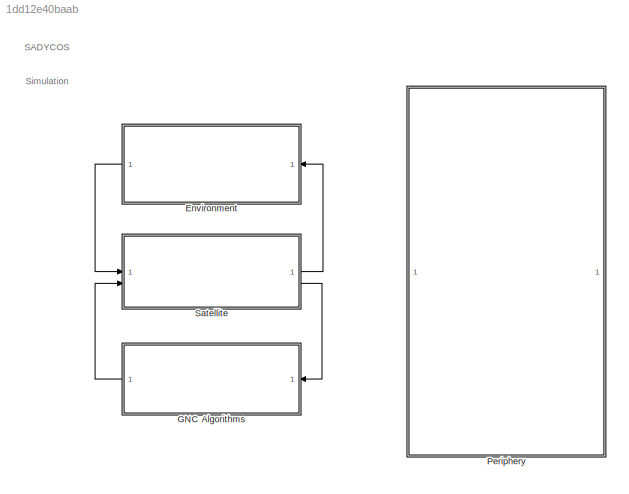
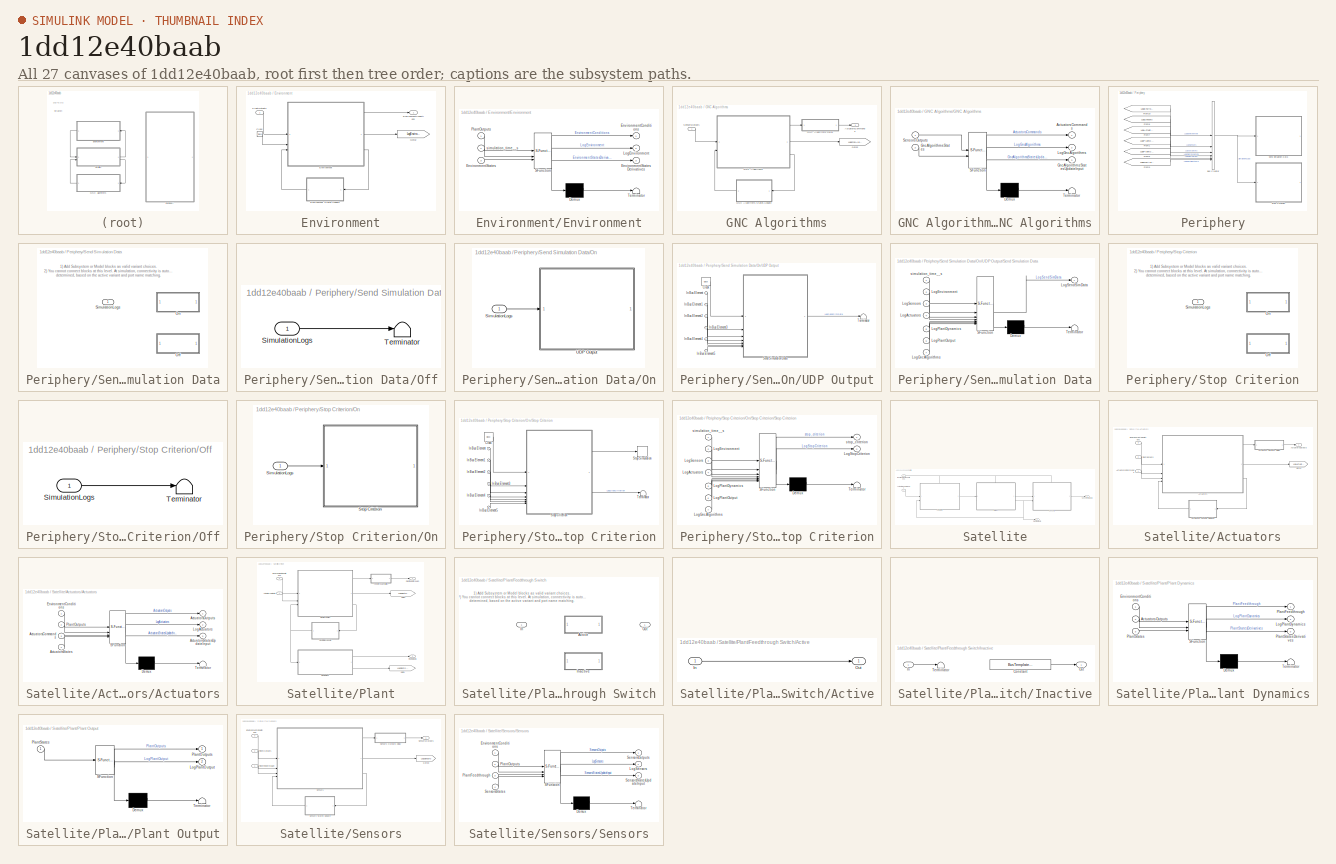
[diagram: thumbnail index - all 27 canvases of the model, root first then tree order]
MODEL slx_1dd12e40baab
KIND model
CONFIG AbsTol = auto
CONFIG EnableMultiTasking = off
CONFIG FixedStep = auto
CONFIG MaxStep = auto
CONFIG MinStep = auto
CONFIG RelTol = 1e-3
CONFIG SampleTimeConstraint = Unconstrained
CONFIG SolverName = VariableStepAuto
CONFIG StartTime = 0.0
CONFIG StopTime = 60
BLOCK [SubSystem] Environment
BLOCK [Clock] Environment/Clock
BLOCK [SubSystem] Environment/Environment
  ErrorFcn = Stateflow.Translate.translate
  LibrarySourceBlock = simulink/User-Defined\nFunctions/MATLAB Function
  PermitHierarchicalResolution = ExplicitOnly
  SFBlockType = MATLAB Function
  SystemSampleTime = [0 0]
  TreatAsAtomicUnit = on
BLOCK [SubSystem] Environment/Environment States Update
  BusInitialValue = Parameters.General.States.InitialStates.Environment
  BusTemplate = BusTemplates.EnvironmentStates
  ReferencedSubsystem = states_update
  bus = EnvironmentStates
  states_type = Parameters.General.States.Type.Environment
BLOCK [Demux] Environment/Environment/ Demux 
  Outputs = 1
BLOCK [S-Function] Environment/Environment/ SFunction 
  EnableBusSupport = on
  FunctionName = sf_sfun
  Parameters = BusTemplates,Parameters
  PortCounts = [3 4]
  SFcnIsStateOwnerBlock = off
  SFunctionDeploymentMode = off
  Tag = Stateflow S-Function 3
BLOCK [Terminator] Environment/Environment/ Terminator 
BLOCK [Outport] Environment/Environment/EnvironmentConditions
BLOCK [Inport] Environment/Environment/EnvironmentStates
  Port = 3
BLOCK [Outport] Environment/Environment/EnvironmentStatesDerivatives
  Port = 3
BLOCK [Outport] Environment/Environment/LogEnvironment
  Port = 2
BLOCK [Inport] Environment/Environment/PlantOutputs
BLOCK [Inport] Environment/Environment/simulation_time__s
  Port = 2
BLOCK [Outport] Environment/EnvironmentConditions
BLOCK [Goto] Environment/Goto2
  GotoTag = LogEnvironment
  TagVisibility = global
BLOCK [Inport] Environment/PlantOutputs
BLOCK [SubSystem] GNC Algorithms
BLOCK [Outport] GNC Algorithms/ActuatorsCommands
BLOCK [SubSystem] GNC Algorithms/GNC Algorithms
  ErrorFcn = Stateflow.Translate.translate
  LibrarySourceBlock = simulink/User-Defined\nFunctions/MATLAB Function
  PermitHierarchicalResolution = ExplicitOnly
  SFBlockType = MATLAB Function
  SystemSampleTime = Parameters.General.SampleTimeParameters__s.GncAlgorithms
  TreatAsAtomicUnit = on
BLOCK [SubSystem] GNC Algorithms/GNC Algorithms Delay
  BusInitialValue = Parameters.General.Delays.InitialOutputs.GncAlgorithms
  BusTemplate = BusTemplates.ActuatorsCommands
  ReferencedSubsystem = delay
  bus = ActuatorsCommands
  delay_type = Parameters.General.Delays.Type.GncAlgorithms
  delay_value = Parameters.General.Delays.Value.GncAlgorithms
BLOCK [SubSystem] GNC Algorithms/GNC Algorithms States Update
  BusInitialValue = Parameters.General.States.InitialStates.GncAlgorithms
  BusTemplate = BusTemplates.GncAlgorithmsStates
  ReferencedSubsystem = states_update
  bus = GncAlgorithmsStates
  states_type = Parameters.General.States.Type.GncAlgorithms
BLOCK [Demux] GNC Algorithms/GNC Algorithms/ Demux 
  Outputs = 1
BLOCK [S-Function] GNC Algorithms/GNC Algorithms/ SFunction 
  EnableBusSupport = on
  FunctionName = sf_sfun
  Parameters = BusTemplates,Parameters
  PortCounts = [2 4]
  SFcnIsStateOwnerBlock = off
  SFunctionDeploymentMode = off
  Tag = Stateflow S-Function 4
BLOCK [Terminator] GNC Algorithms/GNC Algorithms/ Terminator 
BLOCK [Outport] GNC Algorithms/GNC Algorithms/ActuatorsCommands
BLOCK [Inport] GNC Algorithms/GNC Algorithms/GncAlgorithmsStates
  Port = 2
BLOCK [Outport] GNC Algorithms/GNC Algorithms/GncAlgorithmsStatesUpdateInput
  Port = 3
BLOCK [Outport] GNC Algorithms/GNC Algorithms/LogGncAlgorithms
  Port = 2
BLOCK [Inport] GNC Algorithms/GNC Algorithms/SensorsOutputs
BLOCK [Goto] GNC Algorithms/Goto2
  GotoTag = LogGncAlgorithms
  TagVisibility = global
BLOCK [Inport] GNC Algorithms/SensorsOutputs
BLOCK [SubSystem] Periphery
BLOCK [BusCreator] Periphery/Bus Creator
  DisplayOption = bar
  InheritFromInputs = on
  Inputs = 6
BLOCK [From] Periphery/From1
  GotoTag = LogPlantDynamics
  TagVisibility = global
BLOCK [From] Periphery/From10
  GotoTag = LogEnvironment
  TagVisibility = global
BLOCK [From] Periphery/From6
  GotoTag = LogPlantOutput
  TagVisibility = global
BLOCK [From] Periphery/From7
  GotoTag = LogActuators
  TagVisibility = global
BLOCK [From] Periphery/From8
  GotoTag = LogSensors
  TagVisibility = global
BLOCK [From] Periphery/From9
  GotoTag = LogGncAlgorithms
  TagVisibility = global
BLOCK [SubSystem] Periphery/Send Simulation Data
  Variant = on
BLOCK [SubSystem] Periphery/Send Simulation Data/Off
  VariantControl = ~Parameters.General.enable_send_sim_data
BLOCK [Inport] Periphery/Send Simulation Data/Off/SimulationLogs
BLOCK [Terminator] Periphery/Send Simulation Data/Off/Terminator
BLOCK [SubSystem] Periphery/Send Simulation Data/On
  VariantControl = Parameters.General.enable_send_sim_data
BLOCK [Inport] Periphery/Send Simulation Data/On/SimulationLogs
BLOCK [SubSystem] Periphery/Send Simulation Data/On/UDP Output
BLOCK [Clock] Periphery/Send Simulation Data/On/UDP Output/Clock
BLOCK [Inport] Periphery/Send Simulation Data/On/UDP Output/In Bus Element
BLOCK [Inport] Periphery/Send Simulation Data/On/UDP Output/In Bus Element1
BLOCK [Inport] Periphery/Send Simulation Data/On/UDP Output/In Bus Element2
BLOCK [Inport] Periphery/Send Simulation Data/On/UDP Output/In Bus Element3
BLOCK [Inport] Periphery/Send Simulation Data/On/UDP Output/In Bus Element4
BLOCK [Inport] Periphery/Send Simulation Data/On/UDP Output/In Bus Element5
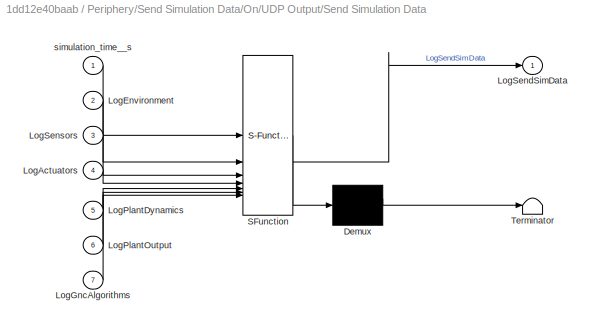
BLOCK [SubSystem] Periphery/Send Simulation Data/On/UDP Output/Send Simulation Data
  ErrorFcn = Stateflow.Translate.translate
  LibrarySourceBlock = simulink/User-Defined\nFunctions/MATLAB Function
  PermitHierarchicalResolution = ExplicitOnly
  SFBlockType = MATLAB Function
  SystemSampleTime = Parameters.General.SampleTimeParameters__s.SendSimData
  TreatAsAtomicUnit = on
BLOCK [Demux] Periphery/Send Simulation Data/On/UDP Output/Send Simulation Data/ Demux 
  Outputs = 1
BLOCK [S-Function] Periphery/Send Simulation Data/On/UDP Output/Send Simulation Data/ SFunction 
  EnableBusSupport = on
  FunctionName = sf_sfun
  Parameters = BusTemplates,Parameters
  PortCounts = [7 2]
  SFcnIsStateOwnerBlock = off
  SFunctionDeploymentMode = off
  Tag = Stateflow S-Function 1
BLOCK [Terminator] Periphery/Send Simulation Data/On/UDP Output/Send Simulation Data/ Terminator 
BLOCK [Inport] Periphery/Send Simulation Data/On/UDP Output/Send Simulation Data/LogActuators
  Port = 4
BLOCK [Inport] Periphery/Send Simulation Data/On/UDP Output/Send Simulation Data/LogEnvironment
  Port = 2
BLOCK [Inport] Periphery/Send Simulation Data/On/UDP Output/Send Simulation Data/LogGncAlgorithms
  Port = 7
BLOCK [Inport] Periphery/Send Simulation Data/On/UDP Output/Send Simulation Data/LogPlantDynamics
  Port = 5
BLOCK [Inport] Periphery/Send Simulation Data/On/UDP Output/Send Simulation Data/LogPlantOutput
  Port = 6
BLOCK [Outport] Periphery/Send Simulation Data/On/UDP Output/Send Simulation Data/LogSendSimData
BLOCK [Inport] Periphery/Send Simulation Data/On/UDP Output/Send Simulation Data/LogSensors
  Port = 3
BLOCK [Inport] Periphery/Send Simulation Data/On/UDP Output/Send Simulation Data/simulation_time__s
BLOCK [Terminator] Periphery/Send Simulation Data/On/UDP Output/Terminator
BLOCK [Inport] Periphery/Send Simulation Data/SimulationLogs
BLOCK [SubSystem] Periphery/Stop Criterion
  Variant = on
BLOCK [SubSystem] Periphery/Stop Criterion/Off
  VariantControl = ~Parameters.General.enable_stop_criterion
BLOCK [Inport] Periphery/Stop Criterion/Off/SimulationLogs
BLOCK [Terminator] Periphery/Stop Criterion/Off/Terminator
BLOCK [SubSystem] Periphery/Stop Criterion/On
  VariantControl = Parameters.General.enable_stop_criterion
BLOCK [Inport] Periphery/Stop Criterion/On/SimulationLogs
BLOCK [SubSystem] Periphery/Stop Criterion/On/Stop Criterion
BLOCK [Clock] Periphery/Stop Criterion/On/Stop Criterion/Clock
BLOCK [Inport] Periphery/Stop Criterion/On/Stop Criterion/In Bus Element
BLOCK [Inport] Periphery/Stop Criterion/On/Stop Criterion/In Bus Element1
BLOCK [Inport] Periphery/Stop Criterion/On/Stop Criterion/In Bus Element2
BLOCK [Inport] Periphery/Stop Criterion/On/Stop Criterion/In Bus Element3
BLOCK [Inport] Periphery/Stop Criterion/On/Stop Criterion/In Bus Element4
BLOCK [Inport] Periphery/Stop Criterion/On/Stop Criterion/In Bus Element5
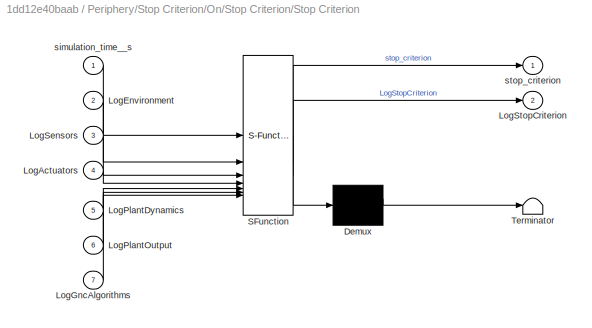
BLOCK [SubSystem] Periphery/Stop Criterion/On/Stop Criterion/Stop Criterion
  ErrorFcn = Stateflow.Translate.translate
  LibrarySourceBlock = simulink/User-Defined\nFunctions/MATLAB Function
  PermitHierarchicalResolution = ExplicitOnly
  SFBlockType = MATLAB Function
  SystemSampleTime = 0
  TreatAsAtomicUnit = on
BLOCK [Demux] Periphery/Stop Criterion/On/Stop Criterion/Stop Criterion/ Demux 
  Outputs = 1
BLOCK [S-Function] Periphery/Stop Criterion/On/Stop Criterion/Stop Criterion/ SFunction 
  EnableBusSupport = off
  FunctionName = sf_sfun
  Parameters = BusTemplates,Parameters
  PortCounts = [7 3]
  SFcnIsStateOwnerBlock = off
  SFunctionDeploymentMode = off
  Tag = Stateflow S-Function 7
BLOCK [Terminator] Periphery/Stop Criterion/On/Stop Criterion/Stop Criterion/ Terminator 
BLOCK [Inport] Periphery/Stop Criterion/On/Stop Criterion/Stop Criterion/LogActuators
  Port = 4
BLOCK [Inport] Periphery/Stop Criterion/On/Stop Criterion/Stop Criterion/LogEnvironment
  Port = 2
BLOCK [Inport] Periphery/Stop Criterion/On/Stop Criterion/Stop Criterion/LogGncAlgorithms
  Port = 7
BLOCK [Inport] Periphery/Stop Criterion/On/Stop Criterion/Stop Criterion/LogPlantDynamics
  Port = 5
BLOCK [Inport] Periphery/Stop Criterion/On/Stop Criterion/Stop Criterion/LogPlantOutput
  Port = 6
BLOCK [Inport] Periphery/Stop Criterion/On/Stop Criterion/Stop Criterion/LogSensors
  Port = 3
BLOCK [Outport] Periphery/Stop Criterion/On/Stop Criterion/Stop Criterion/LogStopCriterion
  Port = 2
BLOCK [Inport] Periphery/Stop Criterion/On/Stop Criterion/Stop Criterion/simulation_time__s
BLOCK [Outport] Periphery/Stop Criterion/On/Stop Criterion/Stop Criterion/stop_criterion
BLOCK [Stop] Periphery/Stop Criterion/On/Stop Criterion/Stop Simulation
BLOCK [Terminator] Periphery/Stop Criterion/On/Stop Criterion/Terminator
BLOCK [Inport] Periphery/Stop Criterion/SimulationLogs
BLOCK [SubSystem] Satellite
BLOCK [SubSystem] Satellite/Actuators
  PortSchema = {"entries":[{"content":{"sides":[{"content":{"connectorIds":["In1","In2"]},"type":"ConnectorPlacement.EquallySpacedRectSide","uuid":"84ab0471-c988-440c-b8b5-169cbd29501d"},{"content":{"connectorIds":["Out1"],"side":"RIGHT"},"type":"ConnectorPlacement.EquallySpacedRectSide","uuid":"27e08eb0-e385-4cd2-ab07-f71ebf995a80"},{"content":{"connectorIds":["In3"],"side":"TOP"},"type":"ConnectorPlacement.Equ...<+251ch>
BLOCK [SubSystem] Satellite/Actuators/Actuators
  ErrorFcn = Stateflow.Translate.translate
  LibrarySourceBlock = simulink/User-Defined\nFunctions/MATLAB Function
  PermitHierarchicalResolution = ExplicitOnly
  SFBlockType = MATLAB Function
  SystemSampleTime = Parameters.General.SampleTimeParameters__s.Sensors
  TreatAsAtomicUnit = on
BLOCK [SubSystem] Satellite/Actuators/Actuators Outputs Delay
  BusInitialValue = Parameters.General.Delays.InitialOutputs.Actuators
  BusTemplate = BusTemplates.ActuatorsOutputs
  ReferencedSubsystem = delay
  bus = ActuatorsOutputs
  delay_type = Parameters.General.Delays.Type.Actuators
  delay_value = Parameters.General.Delays.Value.Actuators
BLOCK [SubSystem] Satellite/Actuators/Actuators States Update
  BusInitialValue = Parameters.General.States.InitialStates.Actuators
  BusTemplate = BusTemplates.ActuatorsStates
  ReferencedSubsystem = states_update
  bus = ActuatorsStates
  states_type = Parameters.General.States.Type.Actuators
BLOCK [Demux] Satellite/Actuators/Actuators/ Demux 
  Outputs = 1
BLOCK [S-Function] Satellite/Actuators/Actuators/ SFunction 
  EnableBusSupport = on
  FunctionName = sf_sfun
  Parameters = BusTemplates,Parameters
  PortCounts = [4 4]
  SFcnIsStateOwnerBlock = off
  SFunctionDeploymentMode = off
  Tag = Stateflow S-Function 5
BLOCK [Terminator] Satellite/Actuators/Actuators/ Terminator 
BLOCK [Inport] Satellite/Actuators/Actuators/ActuatorsCommands
  Port = 3
BLOCK [Outport] Satellite/Actuators/Actuators/ActuatorsOutputs
BLOCK [Inport] Satellite/Actuators/Actuators/ActuatorsStates
  Port = 4
BLOCK [Outport] Satellite/Actuators/Actuators/ActuatorsStatesUpdateInput
  Port = 3
BLOCK [Inport] Satellite/Actuators/Actuators/EnvironmentConditions
BLOCK [Outport] Satellite/Actuators/Actuators/LogActuators
  Port = 2
BLOCK [Inport] Satellite/Actuators/Actuators/PlantOutputs
  Port = 2
BLOCK [Inport] Satellite/Actuators/ActuatorsCommands
BLOCK [Outport] Satellite/Actuators/ActuatorsOutputs
BLOCK [Inport] Satellite/Actuators/EnvironmentConditions
  Port = 3
BLOCK [Goto] Satellite/Actuators/Goto4
  GotoTag = LogActuators
  TagVisibility = global
BLOCK [Inport] Satellite/Actuators/PlantOutputs
  Port = 2
BLOCK [Inport] Satellite/ActuatorsCommands
  Port = 2
BLOCK [Inport] Satellite/EnvironmentConditions
BLOCK [SubSystem] Satellite/Plant
  PortSchema = {"entries":[{"content":{"sides":[{"content":{"connectorIds":["In1"]},"type":"ConnectorPlacement.EquallySpacedRectSide","uuid":"699a6fa8-6c9c-46ad-a38d-56c4e347c077"},{"content":{"connectorIds":["Out1","Out2"],"side":"RIGHT"},"type":"ConnectorPlacement.EquallySpacedRectSide","uuid":"694d06d3-80f5-4508-a5d9-bbea1f4beed1"},{"content":{"connectorIds":["In2"],"side":"TOP"},"type":"ConnectorPlacement.Eq...<+252ch>
BLOCK [Inport] Satellite/Plant/ActuatorsOutputs
BLOCK [Inport] Satellite/Plant/EnvironmentConditions
  Port = 2
BLOCK [SubSystem] Satellite/Plant/Feedthrough Switch
  Variant = on
BLOCK [SubSystem] Satellite/Plant/Feedthrough Switch/Active
  VariantControl = Parameters.General.enable_plant_feedthrough
BLOCK [Inport] Satellite/Plant/Feedthrough Switch/Active/In
BLOCK [Outport] Satellite/Plant/Feedthrough Switch/Active/Out
BLOCK [Inport] Satellite/Plant/Feedthrough Switch/In
BLOCK [SubSystem] Satellite/Plant/Feedthrough Switch/Inactive
  VariantControl = ~Parameters.General.enable_plant_feedthrough
BLOCK [Constant] Satellite/Plant/Feedthrough Switch/Inactive/Constant
  OutDataTypeStr = Bus: PlantFeedthrough
  Value = BusTemplates.PlantFeedthrough
BLOCK [Inport] Satellite/Plant/Feedthrough Switch/Inactive/In
BLOCK [Outport] Satellite/Plant/Feedthrough Switch/Inactive/Out
BLOCK [Terminator] Satellite/Plant/Feedthrough Switch/Inactive/Terminator
BLOCK [Outport] Satellite/Plant/Feedthrough Switch/Out
BLOCK [Goto] Satellite/Plant/Goto1
  GotoTag = LogPlantOutput
  TagVisibility = global
BLOCK [Goto] Satellite/Plant/Goto2
  GotoTag = LogPlantDynamics
  TagVisibility = global
BLOCK [SubSystem] Satellite/Plant/Plant Dynamics
  ErrorFcn = Stateflow.Translate.translate
  LibrarySourceBlock = simulink/User-Defined\nFunctions/MATLAB Function
  PermitHierarchicalResolution = ExplicitOnly
  SFBlockType = MATLAB Function
  SystemSampleTime = [0 0]
  TreatAsAtomicUnit = on
BLOCK [Demux] Satellite/Plant/Plant Dynamics/ Demux 
  Outputs = 1
BLOCK [S-Function] Satellite/Plant/Plant Dynamics/ SFunction 
  EnableBusSupport = on
  FunctionName = sf_sfun
  Parameters = BusTemplates,Parameters
  PortCounts = [3 4]
  SFcnIsStateOwnerBlock = off
  SFunctionDeploymentMode = off
  Tag = Stateflow S-Function 6
BLOCK [Terminator] Satellite/Plant/Plant Dynamics/ Terminator 
BLOCK [Inport] Satellite/Plant/Plant Dynamics/ActuatorsOutputs
  Port = 2
BLOCK [Inport] Satellite/Plant/Plant Dynamics/EnvironmentConditions
BLOCK [Outport] Satellite/Plant/Plant Dynamics/LogPlantDynamics
  Port = 2
BLOCK [Outport] Satellite/Plant/Plant Dynamics/PlantFeedthrough
BLOCK [Inport] Satellite/Plant/Plant Dynamics/PlantStates
  Port = 3
BLOCK [Outport] Satellite/Plant/Plant Dynamics/PlantStatesDerivatives
  Port = 3
BLOCK [SubSystem] Satellite/Plant/Plant Output
  ErrorFcn = Stateflow.Translate.translate
  LibrarySourceBlock = simulink/User-Defined\nFunctions/MATLAB Function
  PermitHierarchicalResolution = ExplicitOnly
  SFBlockType = MATLAB Function
  SystemSampleTime = [0 0]
  TreatAsAtomicUnit = on
BLOCK [Demux] Satellite/Plant/Plant Output/ Demux 
  Outputs = 1
BLOCK [S-Function] Satellite/Plant/Plant Output/ SFunction 
  EnableBusSupport = on
  FunctionName = sf_sfun
  Parameters = BusTemplates,Parameters
  PortCounts = [1 3]
  SFcnIsStateOwnerBlock = off
  SFunctionDeploymentMode = off
  Tag = Stateflow S-Function 8
BLOCK [Terminator] Satellite/Plant/Plant Output/ Terminator 
BLOCK [Outport] Satellite/Plant/Plant Output/LogPlantOutput
  Port = 2
BLOCK [Outport] Satellite/Plant/Plant Output/PlantOutputs
BLOCK [Inport] Satellite/Plant/Plant Output/PlantStates
BLOCK [SubSystem] Satellite/Plant/Plant States Update
  BusInitialValue = Parameters.General.States.InitialStates.Plant
  BusTemplate = BusTemplates.PlantStates
  ReferencedSubsystem = states_update
  bus = PlantStates
  states_type = "continuous"
BLOCK [Outport] Satellite/Plant/PlantFeedthrough
BLOCK [Outport] Satellite/Plant/PlantOutputs
  Port = 2
BLOCK [Outport] Satellite/PlantOutputs
BLOCK [SubSystem] Satellite/Sensors
  PortSchema = {"entries":[{"content":{"sides":[{"content":{"connectorIds":["In1","In2"]},"type":"ConnectorPlacement.EquallySpacedRectSide","uuid":"84ab0471-c988-440c-b8b5-169cbd29501d"},{"content":{"connectorIds":["Out1"],"side":"RIGHT"},"type":"ConnectorPlacement.EquallySpacedRectSide","uuid":"27e08eb0-e385-4cd2-ab07-f71ebf995a80"},{"content":{"connectorIds":["In3"],"side":"TOP"},"type":"ConnectorPlacement.Equ...<+251ch>
BLOCK [Inport] Satellite/Sensors/EnvironmentConditions
  Port = 3
BLOCK [Goto] Satellite/Sensors/Goto3
  GotoTag = LogSensors
  TagVisibility = global
BLOCK [Inport] Satellite/Sensors/PlantFeedthrough
BLOCK [Inport] Satellite/Sensors/PlantOutputs
  Port = 2
BLOCK [SubSystem] Satellite/Sensors/Sensors
  ErrorFcn = Stateflow.Translate.translate
  LibrarySourceBlock = simulink/User-Defined\nFunctions/MATLAB Function
  PermitHierarchicalResolution = ExplicitOnly
  SFBlockType = MATLAB Function
  SystemSampleTime = Parameters.General.SampleTimeParameters__s.Sensors
  TreatAsAtomicUnit = on
BLOCK [SubSystem] Satellite/Sensors/Sensors Outputs Delay
  BusInitialValue = Parameters.General.Delays.InitialOutputs.Sensors
  BusTemplate = BusTemplates.SensorsOutputs
  ReferencedSubsystem = delay
  bus = SensorsOutputs
  delay_type = Parameters.General.Delays.Type.Sensors
  delay_value = Parameters.General.Delays.Value.Sensors
BLOCK [SubSystem] Satellite/Sensors/Sensors States Update
  BusInitialValue = Parameters.General.States.InitialStates.Sensors
  BusTemplate = BusTemplates.EnvironmentStates
  ReferencedSubsystem = states_update
  bus = EnvironmentStates
  states_type = Parameters.General.States.Type.Sensors
BLOCK [Demux] Satellite/Sensors/Sensors/ Demux 
  Outputs = 1
BLOCK [S-Function] Satellite/Sensors/Sensors/ SFunction 
  EnableBusSupport = on
  FunctionName = sf_sfun
  Parameters = BusTemplates,Parameters
  PortCounts = [4 4]
  SFcnIsStateOwnerBlock = off
  SFunctionDeploymentMode = off
  Tag = Stateflow S-Function 2
BLOCK [Terminator] Satellite/Sensors/Sensors/ Terminator 
BLOCK [Inport] Satellite/Sensors/Sensors/EnvironmentConditions
BLOCK [Outport] Satellite/Sensors/Sensors/LogSensors
  Port = 2
BLOCK [Inport] Satellite/Sensors/Sensors/PlantFeedthrough
  Port = 3
BLOCK [Inport] Satellite/Sensors/Sensors/PlantOutputs
  Port = 2
BLOCK [Outport] Satellite/Sensors/Sensors/SensorsOutputs
BLOCK [Inport] Satellite/Sensors/Sensors/SensorsStates
  Port = 4
BLOCK [Outport] Satellite/Sensors/Sensors/SensorsStatesUpdateInput
  Port = 3
BLOCK [Outport] Satellite/Sensors/SensorsOutputs
BLOCK [Outport] Satellite/SensorsOutputs
  Port = 2
ANNOTATION (root): SADYCOS
ANNOTATION (root): Simulation
ANNOTATION Periphery/Send Simulation Data: 1) Add Subsystem or Model blocks as valid variant choices. 2) You cannot connect blocks at this level. At simulation, connectivity is automatically determined, based on the active variant and port name matching.
ANNOTATION Periphery/Stop Criterion: 1) Add Subsystem or Model blocks as valid variant choices. 2) You cannot connect blocks at this level. At simulation, connectivity is automatically determined, based on the active variant and port name matching.
ANNOTATION Satellite/Plant/Feedthrough Switch: 1) Add Subsystem or Model blocks as valid variant choices. 2) You cannot connect blocks at this level. At simulation, connectivity is automatically determined, based on the active variant and port name matching.
LINE Environment/Clock:1 -> Environment/Environment:2
LINE Environment/Environment States Update:1 -> Environment/Environment:3
LINE Environment/Environment:1 -> Environment/EnvironmentConditions:1
LINE Environment/Environment:2 -> Environment/Goto2:1
LINE Environment/Environment:3 -> Environment/Environment States Update:1
LINE Environment/PlantOutputs:1 -> Environment/Environment:1
LINE Environment:1 -> Satellite:1
LINE GNC Algorithms/GNC Algorithms Delay:1 -> GNC Algorithms/ActuatorsCommands:1
LINE GNC Algorithms/GNC Algorithms States Update:1 -> GNC Algorithms/GNC Algorithms:2
LINE GNC Algorithms/GNC Algorithms:1 -> GNC Algorithms/GNC Algorithms Delay:1
LINE GNC Algorithms/GNC Algorithms:2 -> GNC Algorithms/Goto2:1
LINE GNC Algorithms/GNC Algorithms:3 -> GNC Algorithms/GNC Algorithms States Update:1
LINE GNC Algorithms/SensorsOutputs:1 -> GNC Algorithms/GNC Algorithms:1
LINE GNC Algorithms:1 -> Satellite:2
NET Periphery/Bus Creator:1 -> Periphery/Send Simulation Data:1, Periphery/Stop Criterion:1
LINE Periphery/From10:1 -> Periphery/Bus Creator:1
LINE Periphery/From1:1 -> Periphery/Bus Creator:4
LINE Periphery/From6:1 -> Periphery/Bus Creator:5
LINE Periphery/From7:1 -> Periphery/Bus Creator:3
LINE Periphery/From8:1 -> Periphery/Bus Creator:2
LINE Periphery/From9:1 -> Periphery/Bus Creator:6
LINE Periphery/Send Simulation Data/Off/SimulationLogs:1 -> Periphery/Send Simulation Data/Off/Terminator:1
LINE Periphery/Send Simulation Data/On/SimulationLogs:1 -> Periphery/Send Simulation Data/On/UDP Output:1
LINE Periphery/Send Simulation Data/On/UDP Output/Clock:1 -> Periphery/Send Simulation Data/On/UDP Output/Send Simulation Data:1
LINE Periphery/Send Simulation Data/On/UDP Output/In Bus Element1:1 -> Periphery/Send Simulation Data/On/UDP Output/Send Simulation Data:3
LINE Periphery/Send Simulation Data/On/UDP Output/In Bus Element2:1 -> Periphery/Send Simulation Data/On/UDP Output/Send Simulation Data:4
LINE Periphery/Send Simulation Data/On/UDP Output/In Bus Element3:1 -> Periphery/Send Simulation Data/On/UDP Output/Send Simulation Data:5
LINE Periphery/Send Simulation Data/On/UDP Output/In Bus Element4:1 -> Periphery/Send Simulation Data/On/UDP Output/Send Simulation Data:6
LINE Periphery/Send Simulation Data/On/UDP Output/In Bus Element5:1 -> Periphery/Send Simulation Data/On/UDP Output/Send Simulation Data:7
LINE Periphery/Send Simulation Data/On/UDP Output/In Bus Element:1 -> Periphery/Send Simulation Data/On/UDP Output/Send Simulation Data:2
LINE Periphery/Send Simulation Data/On/UDP Output/Send Simulation Data:1 -> Periphery/Send Simulation Data/On/UDP Output/Terminator:1
LINE Periphery/Stop Criterion/Off/SimulationLogs:1 -> Periphery/Stop Criterion/Off/Terminator:1
LINE Periphery/Stop Criterion/On/SimulationLogs:1 -> Periphery/Stop Criterion/On/Stop Criterion:1
LINE Periphery/Stop Criterion/On/Stop Criterion/Clock:1 -> Periphery/Stop Criterion/On/Stop Criterion/Stop Criterion:1
LINE Periphery/Stop Criterion/On/Stop Criterion/In Bus Element1:1 -> Periphery/Stop Criterion/On/Stop Criterion/Stop Criterion:3
LINE Periphery/Stop Criterion/On/Stop Criterion/In Bus Element2:1 -> Periphery/Stop Criterion/On/Stop Criterion/Stop Criterion:4
LINE Periphery/Stop Criterion/On/Stop Criterion/In Bus Element3:1 -> Periphery/Stop Criterion/On/Stop Criterion/Stop Criterion:5
LINE Periphery/Stop Criterion/On/Stop Criterion/In Bus Element4:1 -> Periphery/Stop Criterion/On/Stop Criterion/Stop Criterion:6
LINE Periphery/Stop Criterion/On/Stop Criterion/In Bus Element5:1 -> Periphery/Stop Criterion/On/Stop Criterion/Stop Criterion:7
LINE Periphery/Stop Criterion/On/Stop Criterion/In Bus Element:1 -> Periphery/Stop Criterion/On/Stop Criterion/Stop Criterion:2
LINE Periphery/Stop Criterion/On/Stop Criterion/Stop Criterion:1 -> Periphery/Stop Criterion/On/Stop Criterion/Stop Simulation:1
LINE Periphery/Stop Criterion/On/Stop Criterion/Stop Criterion:2 -> Periphery/Stop Criterion/On/Stop Criterion/Terminator:1
LINE Satellite/Actuators/Actuators Outputs Delay:1 -> Satellite/Actuators/ActuatorsOutputs:1
LINE Satellite/Actuators/Actuators States Update:1 -> Satellite/Actuators/Actuators:4
LINE Satellite/Actuators/Actuators:1 -> Satellite/Actuators/Actuators Outputs Delay:1
LINE Satellite/Actuators/Actuators:2 -> Satellite/Actuators/Goto4:1
LINE Satellite/Actuators/Actuators:3 -> Satellite/Actuators/Actuators States Update:1
LINE Satellite/Actuators/ActuatorsCommands:1 -> Satellite/Actuators/Actuators:3
LINE Satellite/Actuators/EnvironmentConditions:1 -> Satellite/Actuators/Actuators:1
LINE Satellite/Actuators/PlantOutputs:1 -> Satellite/Actuators/Actuators:2
LINE Satellite/Actuators:1 -> Satellite/Plant:1
LINE Satellite/ActuatorsCommands:1 -> Satellite/Actuators:1
NET Satellite/EnvironmentConditions:1 -> Satellite/Actuators:3, Satellite/Plant:2, Satellite/Sensors:3
LINE Satellite/Plant/ActuatorsOutputs:1 -> Satellite/Plant/Plant Dynamics:2
LINE Satellite/Plant/EnvironmentConditions:1 -> Satellite/Plant/Plant Dynamics:1
LINE Satellite/Plant/Feedthrough Switch/Active/In:1 -> Satellite/Plant/Feedthrough Switch/Active/Out:1
LINE Satellite/Plant/Feedthrough Switch/Inactive/Constant:1 -> Satellite/Plant/Feedthrough Switch/Inactive/Out:1
LINE Satellite/Plant/Feedthrough Switch/Inactive/In:1 -> Satellite/Plant/Feedthrough Switch/Inactive/Terminator:1
LINE Satellite/Plant/Feedthrough Switch:1 -> Satellite/Plant/PlantFeedthrough:1
LINE Satellite/Plant/Plant Dynamics:1 -> Satellite/Plant/Feedthrough Switch:1
LINE Satellite/Plant/Plant Dynamics:2 -> Satellite/Plant/Goto2:1
LINE Satellite/Plant/Plant Dynamics:3 -> Satellite/Plant/Plant States Update:1
LINE Satellite/Plant/Plant Output:1 -> Satellite/Plant/PlantOutputs:1
LINE Satellite/Plant/Plant Output:2 -> Satellite/Plant/Goto1:1
NET Satellite/Plant/Plant States Update:1 -> Satellite/Plant/Plant Dynamics:3, Satellite/Plant/Plant Output:1
LINE Satellite/Plant:1 -> Satellite/Sensors:1
NET Satellite/Plant:2 -> Satellite/Actuators:2, Satellite/PlantOutputs:1, Satellite/Sensors:2
LINE Satellite/Sensors/EnvironmentConditions:1 -> Satellite/Sensors/Sensors:1
LINE Satellite/Sensors/PlantFeedthrough:1 -> Satellite/Sensors/Sensors:3
LINE Satellite/Sensors/PlantOutputs:1 -> Satellite/Sensors/Sensors:2
LINE Satellite/Sensors/Sensors Outputs Delay:1 -> Satellite/Sensors/SensorsOutputs:1
LINE Satellite/Sensors/Sensors States Update:1 -> Satellite/Sensors/Sensors:4
LINE Satellite/Sensors/Sensors:1 -> Satellite/Sensors/Sensors Outputs Delay:1
LINE Satellite/Sensors/Sensors:2 -> Satellite/Sensors/Goto3:1
LINE Satellite/Sensors/Sensors:3 -> Satellite/Sensors/Sensors States Update:1
LINE Satellite/Sensors:1 -> Satellite/SensorsOutputs:1
LINE Satellite:1 -> Environment:1
LINE Satellite:2 -> GNC Algorithms:1
note: NET lines group one-source signal fan-out (src -> all destinations, sorted); 1:1 wires keep LINE
CHART Satellite/Plant/Plant Dynamics states=1 transitions=1
  STATE_LABEL 'eML_blk_kernel()'
  STATE_LABEL 'SCRIPT:\nfunction [PlantFeedthrough, ...\n            LogPlantDynamics, ...    \n            PlantStatesDerivatives] ...\n            = PlantDynamics(EnvironmentConditions, ...\n                            ActuatorsOutputs, ...\n                            PlantStates, ...\n                            Parameters, ...\n                            BusTemplates)\n\n%% Parameters Abbreviations\nParametersPlant =...<+740ch>'
CHART Periphery/Stop Criterion/On/Stop Criterion/Stop Criterion states=1 transitions=1
  STATE_LABEL 'eML_blk_kernel()'
  STATE_LABEL 'SCRIPT:\nfunction [stop_criterion, LogStopCriterion] = StopCriterion(simulation_time__s, ...\n                                                            LogEnvironment, ...\n                                                            LogSensors, ...\n                                                            LogActuators, ...\n                                                            LogPlantDynami...<+986ch>'
CHART Satellite/Plant/Plant Output states=1 transitions=1
  STATE_LABEL 'eML_blk_kernel()'
  STATE_LABEL 'SCRIPT:\nfunction [PlantOutputs, LogPlantOutput] = PlantOutput(PlantStates, Parameters, BusTemplates)\n\n%% Parameters Abbreviations\nParametersPlant = Parameters.Plant;\n\n%% Initialize Bus Outputs\nPlantOutputs = BusTemplates.PlantOutputs;\nLogPlantOutput = BusTemplates.LogPlantOutput;\n\n%% Call Function\n[PlantOutputs, LogPlantOutput] ...\n    = SimulinkInterfaces.plantOutput(PlantOutputs, ...\n           ...<+151ch>'
CHART Periphery/Send Simulation Data/On/UDP Output/Send Simulation Data states=1 transitions=1
  STATE_LABEL 'eML_blk_kernel()'
  STATE_LABEL 'SCRIPT:\nfunction LogSendSimData  = SendSimData(simulation_time__s, ...\n                                                            LogEnvironment, ...\n                                                            LogSensors, ...\n                                                            LogActuators, ...\n                                                            LogPlantDynamics, ...\n             ...<+937ch>'
CHART Satellite/Sensors/Sensors states=1 transitions=1
  STATE_LABEL 'eML_blk_kernel()'
  STATE_LABEL 'SCRIPT:\nfunction [SensorsOutputs, ...\n            LogSensors, ...\n            SensorsStatesUpdateInput] ...\n            = Sensors(EnvironmentConditions, ...\n                        PlantOutputs, ...\n                        PlantFeedthrough, ...\n                        SensorsStates, ...\n                        Parameters, ...\n                        BusTemplates)\n\n%% Parameters Abbreviations\nParam...<+756ch>'
CHART Environment/Environment states=1 transitions=1
  STATE_LABEL 'eML_blk_kernel()'
  STATE_LABEL 'SCRIPT:\nfunction [EnvironmentConditions, ...\n            LogEnvironment, ...\n            EnvironmentStatesDerivatives] ...\n            = Environment(PlantOutputs, ...\n                            simulation_time__s, ...\n                            EnvironmentStates, ...\n                            Parameters, ...\n                            BusTemplates)\n\n%% Parameters Abbreviations\nParametersEnvir...<+787ch>'
CHART GNC Algorithms/GNC Algorithms states=1 transitions=1
  STATE_LABEL 'eML_blk_kernel()'
  STATE_LABEL 'SCRIPT:\nfunction [ActuatorsCommands, ...\n            LogGncAlgorithms, ...\n            GncAlgorithmsStatesUpdateInput] ...\n            = GncAlgorithms(SensorsOutputs,...\n                            GncAlgorithmsStates, ...\n                            Parameters, ...\n                            BusTemplates)\n\n%% Parameters Abbreviations\nParametersGncAlgorithms = Parameters.GncAlgorithms;\n\n%% Initia...<+691ch>'
CHART Satellite/Actuators/Actuators states=1 transitions=1
  STATE_LABEL 'eML_blk_kernel()'
  STATE_LABEL 'SCRIPT:\nfunction [ActuatorsOutputs, ...\n            LogActuators, ...\n            ActuatorsStatesUpdateInput] ...\n            = Actuators(EnvironmentConditions, ...\n                        PlantOutputs, ...\n                        ActuatorsCommands, ...\n                        ActuatorsStates, ...\n                        Parameters, ...\n                        BusTemplates)\n\n%% Parameters Abbrevia...<+801ch>'
CHART  states=0 transitions=0
CHART  states=0 transitions=0
CHART  states=0 transitions=0
CHART  states=0 transitions=0
CHART  states=0 transitions=0
CHART  states=0 transitions=0
CHART  states=0 transitions=0
CHART  states=0 transitions=0
